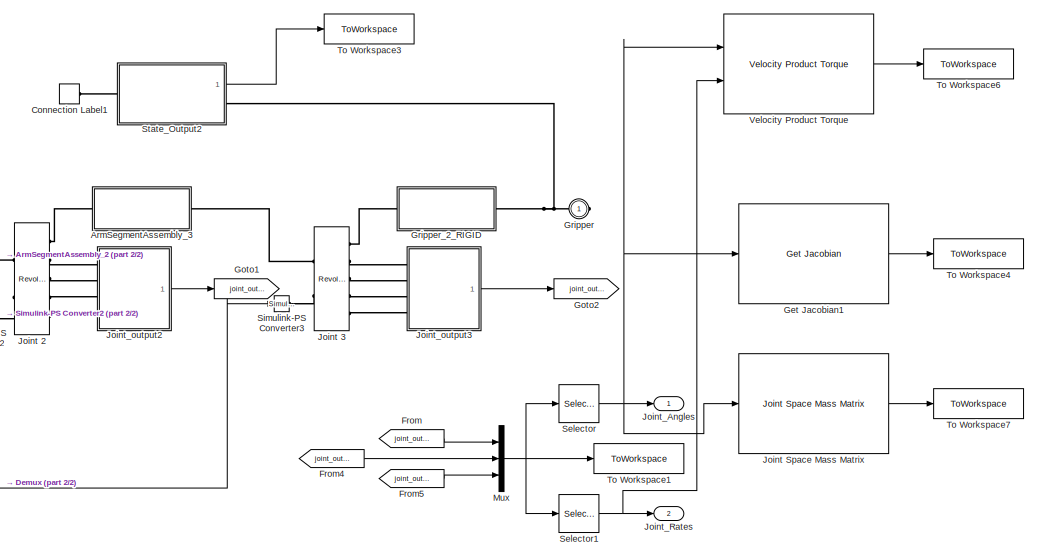
[diagram: root canvas - part 1/2, right side, full height]
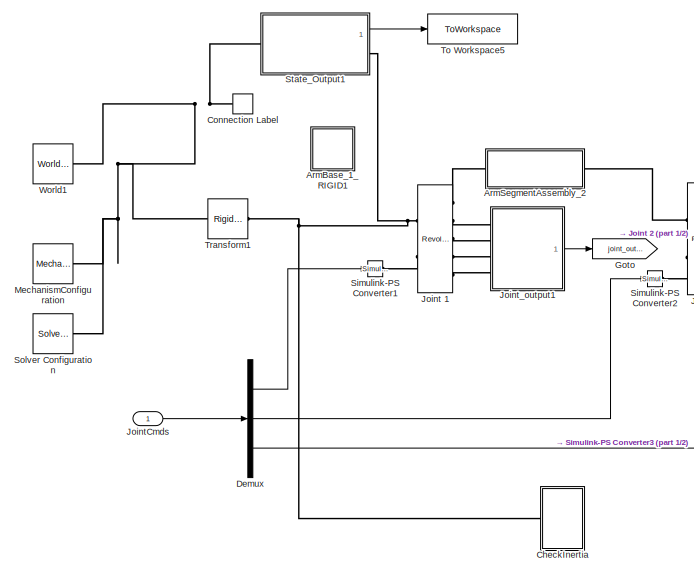
[diagram: root canvas - part 2/2, left side, full height]
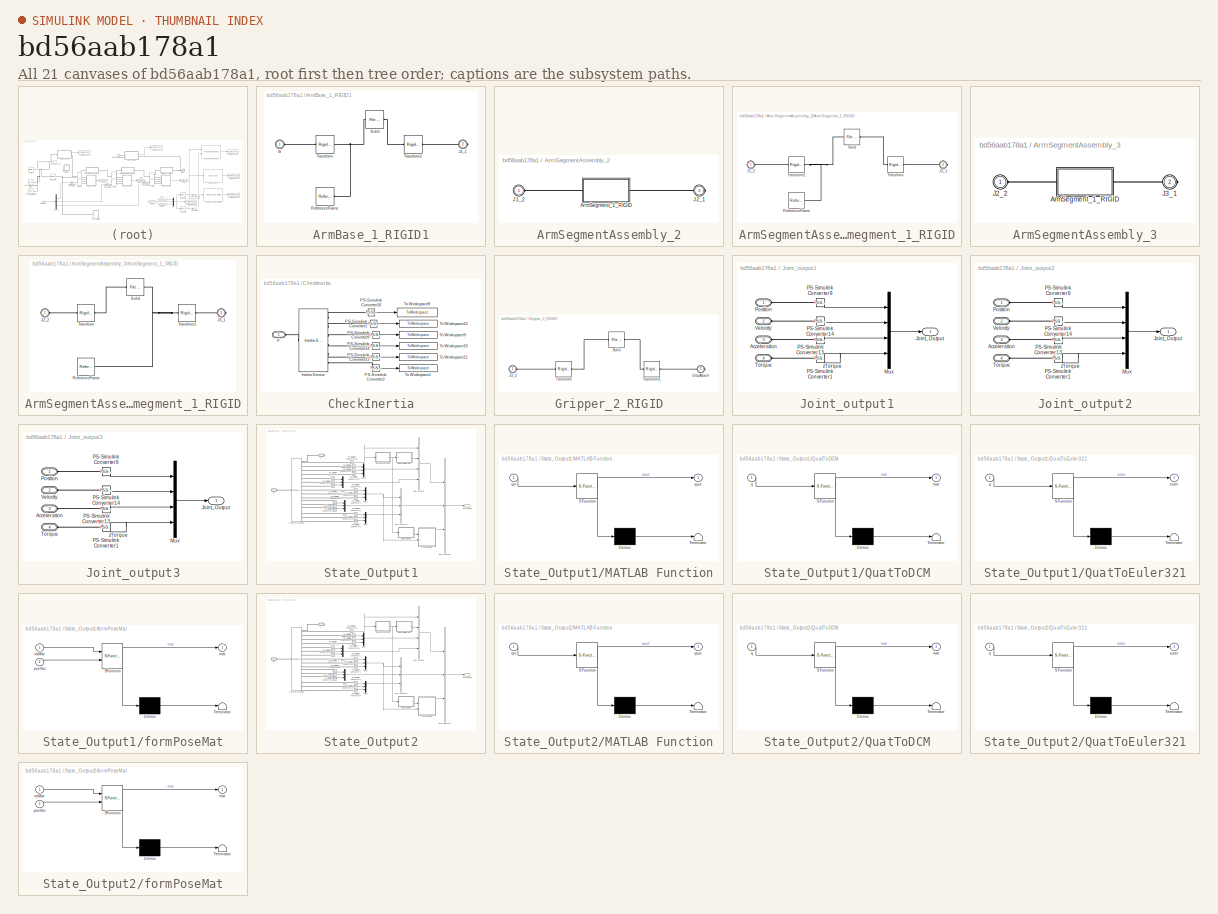
[diagram: thumbnail index - all 21 canvases of the model, root first then tree order]
MODEL slx_bd56aab178a1
KIND model
CONFIG AbsTol = auto
CONFIG EnableMultiTasking = off
CONFIG FixedStep = auto
CONFIG MaxStep = auto
CONFIG MinStep = auto
CONFIG RelTol = 1e-3
CONFIG SampleTimeConstraint = Unconstrained
CONFIG SolverName = VariableStepAuto
CONFIG StartTime = 0.0
CONFIG StopTime = 10.0
BLOCK [SubSystem] ArmBase_1_RIGID1
  Commented = on
  Ports = [0, 0, 0, 0, 0, 1, 1]
  RequestExecContextInheritance = off
BLOCK [PMIOPort] ArmBase_1_RIGID1/B
  Side = Left
BLOCK [PMIOPort] ArmBase_1_RIGID1/J1_1
  Port = 2
  Side = Right
BLOCK [Reference] ArmBase_1_RIGID1/ReferenceFrame  REF=sm_lib/Frames and
Transforms/Reference
Frame
  Ports = [0, 0, 0, 0, 0, 0, 1]
  SourceBlock = sm_lib/Frames and\nTransforms/Reference\nFrame
  SourceProductBaseCode = MS
  SourceType = Reference\nFrame
BLOCK [Reference] ArmBase_1_RIGID1/Solid  REF=sm_lib/Body Elements/File Solid
  Ports = [0, 0, 0, 0, 0, 1, 1]
  SourceBlock = sm_lib/Body Elements/File Solid
  SourceProductBaseCode = MS
  SourceType = File Solid
BLOCK [Reference] ArmBase_1_RIGID1/Transform  REF=sm_lib/Frames and
Transforms/Rigid
Transform
  Ports = [0, 0, 0, 0, 0, 1, 1]
  SourceBlock = sm_lib/Frames and\nTransforms/Rigid\nTransform
  SourceProductBaseCode = MS
  SourceType = Rigid\nTransform
BLOCK [Reference] ArmBase_1_RIGID1/Transform1  REF=sm_lib/Frames and
Transforms/Rigid
Transform
  Ports = [0, 0, 0, 0, 0, 1, 1]
  SourceBlock = sm_lib/Frames and\nTransforms/Rigid\nTransform
  SourceProductBaseCode = MS
  SourceType = Rigid\nTransform
BLOCK [SubSystem] ArmSegmentAssembly_2
  Ports = [0, 0, 0, 0, 0, 1, 1]
  RequestExecContextInheritance = off
BLOCK [SubSystem] ArmSegmentAssembly_2/ArmSegment_1_RIGID
  Ports = [0, 0, 0, 0, 0, 1, 1]
  RequestExecContextInheritance = off
BLOCK [PMIOPort] ArmSegmentAssembly_2/ArmSegment_1_RIGID/J1_2
  Side = Left
BLOCK [PMIOPort] ArmSegmentAssembly_2/ArmSegment_1_RIGID/J2_1
  Port = 2
  Side = Right
BLOCK [Reference] ArmSegmentAssembly_2/ArmSegment_1_RIGID/ReferenceFrame  REF=sm_lib/Frames and
Transforms/Reference
Frame
  Ports = [0, 0, 0, 0, 0, 0, 1]
  SourceBlock = sm_lib/Frames and\nTransforms/Reference\nFrame
  SourceProductBaseCode = MS
  SourceType = Reference\nFrame
BLOCK [Reference] ArmSegmentAssembly_2/ArmSegment_1_RIGID/Solid  REF=sm_lib/Body Elements/File Solid
  Ports = [0, 0, 0, 0, 0, 1, 1]
  SourceBlock = sm_lib/Body Elements/File Solid
  SourceProductBaseCode = MS
  SourceType = File Solid
BLOCK [Reference] ArmSegmentAssembly_2/ArmSegment_1_RIGID/Transform  REF=sm_lib/Frames and
Transforms/Rigid
Transform
  Ports = [0, 0, 0, 0, 0, 1, 1]
  SourceBlock = sm_lib/Frames and\nTransforms/Rigid\nTransform
  SourceProductBaseCode = MS
  SourceType = Rigid\nTransform
BLOCK [Reference] ArmSegmentAssembly_2/ArmSegment_1_RIGID/Transform1  REF=sm_lib/Frames and
Transforms/Rigid
Transform
  Ports = [0, 0, 0, 0, 0, 1, 1]
  SourceBlock = sm_lib/Frames and\nTransforms/Rigid\nTransform
  SourceProductBaseCode = MS
  SourceType = Rigid\nTransform
BLOCK [PMIOPort] ArmSegmentAssembly_2/J1_2
  Side = Left
BLOCK [PMIOPort] ArmSegmentAssembly_2/J2_1
  Port = 2
  Side = Right
BLOCK [SubSystem] ArmSegmentAssembly_3
  Ports = [0, 0, 0, 0, 0, 1, 1]
  RequestExecContextInheritance = off
BLOCK [SubSystem] ArmSegmentAssembly_3/ArmSegment_1_RIGID
  Ports = [0, 0, 0, 0, 0, 1, 1]
  RequestExecContextInheritance = off
BLOCK [PMIOPort] ArmSegmentAssembly_3/ArmSegment_1_RIGID/J2_2
  Side = Left
BLOCK [PMIOPort] ArmSegmentAssembly_3/ArmSegment_1_RIGID/J3_1
  Port = 2
  Side = Right
BLOCK [Reference] ArmSegmentAssembly_3/ArmSegment_1_RIGID/ReferenceFrame  REF=sm_lib/Frames and
Transforms/Reference
Frame
  Ports = [0, 0, 0, 0, 0, 0, 1]
  SourceBlock = sm_lib/Frames and\nTransforms/Reference\nFrame
  SourceProductBaseCode = MS
  SourceType = Reference\nFrame
BLOCK [Reference] ArmSegmentAssembly_3/ArmSegment_1_RIGID/Solid  REF=sm_lib/Body Elements/File Solid
  Ports = [0, 0, 0, 0, 0, 1, 1]
  SourceBlock = sm_lib/Body Elements/File Solid
  SourceProductBaseCode = MS
  SourceType = File Solid
BLOCK [Reference] ArmSegmentAssembly_3/ArmSegment_1_RIGID/Transform  REF=sm_lib/Frames and
Transforms/Rigid
Transform
  Ports = [0, 0, 0, 0, 0, 1, 1]
  SourceBlock = sm_lib/Frames and\nTransforms/Rigid\nTransform
  SourceProductBaseCode = MS
  SourceType = Rigid\nTransform
BLOCK [Reference] ArmSegmentAssembly_3/ArmSegment_1_RIGID/Transform1  REF=sm_lib/Frames and
Transforms/Rigid
Transform
  Ports = [0, 0, 0, 0, 0, 1, 1]
  SourceBlock = sm_lib/Frames and\nTransforms/Rigid\nTransform
  SourceProductBaseCode = MS
  SourceType = Rigid\nTransform
BLOCK [PMIOPort] ArmSegmentAssembly_3/J2_2
  Side = Left
BLOCK [PMIOPort] ArmSegmentAssembly_3/J3_1
  Port = 2
  Side = Right
BLOCK [SubSystem] CheckInertia
  Commented = on
  Ports = [0, 0, 0, 0, 0, 1]
  RequestExecContextInheritance = off
BLOCK [PMIOPort] CheckInertia/F
  Side = Left
BLOCK [Reference] CheckInertia/Inertia Sensor  REF=sm_lib/Body Elements/Inertia Sensor
  Ports = [0, 0, 0, 0, 0, 1, 6]
  SourceBlock = sm_lib/Body Elements/Inertia Sensor
  SourceProductBaseCode = MS
  SourceType = Inertia Sensor
BLOCK [Reference] CheckInertia/PS-Simulink Converter1  REF=nesl_utility/PS-Simulink
Converter
  Ports = [0, 1, 0, 0, 0, 1]
  SourceBlock = nesl_utility/PS-Simulink\nConverter
  SourceProductBaseCode = SS,PW,VE
  SourceType = PS-Simulink\nConverter
BLOCK [Reference] CheckInertia/PS-Simulink Converter13  REF=nesl_utility/PS-Simulink
Converter
  Ports = [0, 1, 0, 0, 0, 1]
  SourceBlock = nesl_utility/PS-Simulink\nConverter
  SourceProductBaseCode = SS,PW,VE
  SourceType = PS-Simulink\nConverter
BLOCK [Reference] CheckInertia/PS-Simulink Converter14  REF=nesl_utility/PS-Simulink
Converter
  Ports = [0, 1, 0, 0, 0, 1]
  SourceBlock = nesl_utility/PS-Simulink\nConverter
  SourceProductBaseCode = SS,PW,VE
  SourceType = PS-Simulink\nConverter
BLOCK [Reference] CheckInertia/PS-Simulink Converter16  REF=nesl_utility/PS-Simulink
Converter
  Ports = [0, 1, 0, 0, 0, 1]
  SourceBlock = nesl_utility/PS-Simulink\nConverter
  SourceProductBaseCode = SS,PW,VE
  SourceType = PS-Simulink\nConverter
BLOCK [Reference] CheckInertia/PS-Simulink Converter2  REF=nesl_utility/PS-Simulink
Converter
  Ports = [0, 1, 0, 0, 0, 1]
  SourceBlock = nesl_utility/PS-Simulink\nConverter
  SourceProductBaseCode = SS,PW,VE
  SourceType = PS-Simulink\nConverter
BLOCK [Reference] CheckInertia/PS-Simulink Converter9  REF=nesl_utility/PS-Simulink
Converter
  Ports = [0, 1, 0, 0, 0, 1]
  SourceBlock = nesl_utility/PS-Simulink\nConverter
  SourceProductBaseCode = SS,PW,VE
  SourceType = PS-Simulink\nConverter
BLOCK [ToWorkspace] CheckInertia/To Workspace1
  FixptAsFi = on
  MaxDataPoints = inf
  Ports = [1]
  SampleTime = -1
  SaveFormat = Timeseries
  VariableName = rot
BLOCK [ToWorkspace] CheckInertia/To Workspace10
  FixptAsFi = on
  MaxDataPoints = inf
  Ports = [1]
  SampleTime = -1
  SaveFormat = Timeseries
  VariableName = i2
BLOCK [ToWorkspace] CheckInertia/To Workspace11
  FixptAsFi = on
  MaxDataPoints = inf
  Ports = [1]
  SampleTime = -1
  SaveFormat = Timeseries
  VariableName = i3
BLOCK [ToWorkspace] CheckInertia/To Workspace12
  FixptAsFi = on
  MaxDataPoints = inf
  Ports = [1]
  SampleTime = -1
  SaveFormat = Timeseries
  VariableName = cg
BLOCK [ToWorkspace] CheckInertia/To Workspace8
  FixptAsFi = on
  MaxDataPoints = inf
  Ports = [1]
  SampleTime = -1
  SaveFormat = Timeseries
  VariableName = mass
BLOCK [ToWorkspace] CheckInertia/To Workspace9
  FixptAsFi = on
  MaxDataPoints = inf
  Ports = [1]
  SampleTime = -1
  SaveFormat = Timeseries
  VariableName = i1
BLOCK [ConnectionLabel] Connection Label
  Label = World
  Ports = [0, 0, 0, 0, 0, 1]
BLOCK [ConnectionLabel] Connection Label1
  Label = World
  Ports = [0, 0, 0, 0, 0, 1]
BLOCK [Demux] Demux
  Outputs = 3
  Ports = [1, 3]
BLOCK [From] From
  GotoTag = joint_out_1
BLOCK [From] From4
  GotoTag = joint_out_2
BLOCK [From] From5
  GotoTag = joint_out_3
BLOCK [Reference] Get Jacobian1  REF=robotmaniplib/Get Jacobian
  Ports = [1, 1]
  SourceBlock = robotmaniplib/Get Jacobian
  SourceProductBaseCode = RO
  SourceType = Get Jacobian
BLOCK [Goto] Goto
  GotoTag = joint_out_1
BLOCK [Goto] Goto1
  GotoTag = joint_out_2
BLOCK [Goto] Goto2
  GotoTag = joint_out_3
BLOCK [PMIOPort] Gripper
  Side = Right
BLOCK [SubSystem] Gripper_2_RIGID
  Ports = [0, 0, 0, 0, 0, 1, 1]
  RequestExecContextInheritance = off
BLOCK [PMIOPort] Gripper_2_RIGID/GripAttach
  Port = 2
  Side = Right
BLOCK [PMIOPort] Gripper_2_RIGID/J3_2
  Side = Left
BLOCK [Reference] Gripper_2_RIGID/Solid  REF=sm_lib/Body Elements/File Solid
  Ports = [0, 0, 0, 0, 0, 1, 1]
  SourceBlock = sm_lib/Body Elements/File Solid
  SourceProductBaseCode = MS
  SourceType = File Solid
BLOCK [Reference] Gripper_2_RIGID/Transform  REF=sm_lib/Frames and
Transforms/Rigid
Transform
  Ports = [0, 0, 0, 0, 0, 1, 1]
  SourceBlock = sm_lib/Frames and\nTransforms/Rigid\nTransform
  SourceProductBaseCode = MS
  SourceType = Rigid\nTransform
BLOCK [Reference] Gripper_2_RIGID/Transform1  REF=sm_lib/Frames and
Transforms/Rigid
Transform
  Ports = [0, 0, 0, 0, 0, 1, 1]
  SourceBlock = sm_lib/Frames and\nTransforms/Rigid\nTransform
  SourceProductBaseCode = MS
  SourceType = Rigid\nTransform
BLOCK [Reference] Joint 1  REF=sm_lib/Joints/Revolute Joint
  Ports = [0, 0, 0, 0, 0, 2, 5]
  SourceBlock = sm_lib/Joints/Revolute Joint
  SourceProductBaseCode = MS
  SourceType = Revolute Joint
BLOCK [Reference] Joint 2  REF=sm_lib/Joints/Revolute Joint
  Ports = [0, 0, 0, 0, 0, 2, 5]
  SourceBlock = sm_lib/Joints/Revolute Joint
  SourceProductBaseCode = MS
  SourceType = Revolute Joint
BLOCK [Reference] Joint 3  REF=sm_lib/Joints/Revolute Joint
  Ports = [0, 0, 0, 0, 0, 2, 5]
  SourceBlock = sm_lib/Joints/Revolute Joint
  SourceProductBaseCode = MS
  SourceType = Revolute Joint
BLOCK [Reference] Joint Space Mass Matrix  REF=robotmaniplib/Joint Space Mass Matrix
  Ports = [1, 1]
  SourceBlock = robotmaniplib/Joint Space Mass Matrix
  SourceProductBaseCode = RO
  SourceType = Joint Space Mass Matrix
BLOCK [Inport] JointCmds
BLOCK [Outport] Joint_Angles
BLOCK [Outport] Joint_Rates
  Port = 2
BLOCK [SubSystem] Joint_output1
  Ports = [0, 1, 0, 0, 0, 4]
  RequestExecContextInheritance = off
BLOCK [PMIOPort] Joint_output1/Acceleration
  Port = 3
  Side = Left
BLOCK [Outport] Joint_output1/Joint_Output
BLOCK [Mux] Joint_output1/Mux
  DisplayOption = bar
  Ports = [4, 1]
BLOCK [Reference] Joint_output1/PS-Simulink Converter1  REF=nesl_utility/PS-Simulink
Converter
  Ports = [0, 1, 0, 0, 0, 1]
  SourceBlock = nesl_utility/PS-Simulink\nConverter
  SourceProductBaseCode = SS,PW,VE
  SourceType = PS-Simulink\nConverter
BLOCK [Reference] Joint_output1/PS-Simulink Converter13  REF=nesl_utility/PS-Simulink
Converter
  Ports = [0, 1, 0, 0, 0, 1]
  SourceBlock = nesl_utility/PS-Simulink\nConverter
  SourceProductBaseCode = SS,PW,VE
  SourceType = PS-Simulink\nConverter
BLOCK [Reference] Joint_output1/PS-Simulink Converter14  REF=nesl_utility/PS-Simulink
Converter
  Ports = [0, 1, 0, 0, 0, 1]
  SourceBlock = nesl_utility/PS-Simulink\nConverter
  SourceProductBaseCode = SS,PW,VE
  SourceType = PS-Simulink\nConverter
BLOCK [Reference] Joint_output1/PS-Simulink Converter9  REF=nesl_utility/PS-Simulink
Converter
  Ports = [0, 1, 0, 0, 0, 1]
  SourceBlock = nesl_utility/PS-Simulink\nConverter
  SourceProductBaseCode = SS,PW,VE
  SourceType = PS-Simulink\nConverter
BLOCK [PMIOPort] Joint_output1/Position
  Side = Left
BLOCK [PMIOPort] Joint_output1/Torque
  Port = 4
  Side = Left
BLOCK [PMIOPort] Joint_output1/Velocity
  Port = 2
  Side = Left
BLOCK [Selector] Joint_output1/zTorque
  IndexOptions = Index vector (dialog)
  Indices = 3
  InputPortWidth = 3
  OutputSizes = 1
  Ports = [1, 1]
BLOCK [SubSystem] Joint_output2
  Ports = [0, 1, 0, 0, 0, 4]
  RequestExecContextInheritance = off
BLOCK [PMIOPort] Joint_output2/Acceleration
  Port = 3
  Side = Left
BLOCK [Outport] Joint_output2/Joint_Output
BLOCK [Mux] Joint_output2/Mux
  DisplayOption = bar
  Ports = [4, 1]
BLOCK [Reference] Joint_output2/PS-Simulink Converter1  REF=nesl_utility/PS-Simulink
Converter
  Ports = [0, 1, 0, 0, 0, 1]
  SourceBlock = nesl_utility/PS-Simulink\nConverter
  SourceProductBaseCode = SS,PW,VE
  SourceType = PS-Simulink\nConverter
BLOCK [Reference] Joint_output2/PS-Simulink Converter13  REF=nesl_utility/PS-Simulink
Converter
  Ports = [0, 1, 0, 0, 0, 1]
  SourceBlock = nesl_utility/PS-Simulink\nConverter
  SourceProductBaseCode = SS,PW,VE
  SourceType = PS-Simulink\nConverter
BLOCK [Reference] Joint_output2/PS-Simulink Converter14  REF=nesl_utility/PS-Simulink
Converter
  Ports = [0, 1, 0, 0, 0, 1]
  SourceBlock = nesl_utility/PS-Simulink\nConverter
  SourceProductBaseCode = SS,PW,VE
  SourceType = PS-Simulink\nConverter
BLOCK [Reference] Joint_output2/PS-Simulink Converter9  REF=nesl_utility/PS-Simulink
Converter
  Ports = [0, 1, 0, 0, 0, 1]
  SourceBlock = nesl_utility/PS-Simulink\nConverter
  SourceProductBaseCode = SS,PW,VE
  SourceType = PS-Simulink\nConverter
BLOCK [PMIOPort] Joint_output2/Position
  Side = Left
BLOCK [PMIOPort] Joint_output2/Torque
  Port = 4
  Side = Left
BLOCK [PMIOPort] Joint_output2/Velocity
  Port = 2
  Side = Left
BLOCK [Selector] Joint_output2/zTorque
  IndexOptions = Index vector (dialog)
  Indices = 3
  InputPortWidth = 3
  OutputSizes = 1
  Ports = [1, 1]
BLOCK [SubSystem] Joint_output3
  Ports = [0, 1, 0, 0, 0, 4]
  RequestExecContextInheritance = off
BLOCK [PMIOPort] Joint_output3/Acceleration
  Port = 3
  Side = Left
BLOCK [Outport] Joint_output3/Joint_Output
BLOCK [Mux] Joint_output3/Mux
  DisplayOption = bar
  Ports = [4, 1]
BLOCK [Reference] Joint_output3/PS-Simulink Converter1  REF=nesl_utility/PS-Simulink
Converter
  Ports = [0, 1, 0, 0, 0, 1]
  SourceBlock = nesl_utility/PS-Simulink\nConverter
  SourceProductBaseCode = SS,PW,VE
  SourceType = PS-Simulink\nConverter
BLOCK [Reference] Joint_output3/PS-Simulink Converter13  REF=nesl_utility/PS-Simulink
Converter
  Ports = [0, 1, 0, 0, 0, 1]
  SourceBlock = nesl_utility/PS-Simulink\nConverter
  SourceProductBaseCode = SS,PW,VE
  SourceType = PS-Simulink\nConverter
BLOCK [Reference] Joint_output3/PS-Simulink Converter14  REF=nesl_utility/PS-Simulink
Converter
  Ports = [0, 1, 0, 0, 0, 1]
  SourceBlock = nesl_utility/PS-Simulink\nConverter
  SourceProductBaseCode = SS,PW,VE
  SourceType = PS-Simulink\nConverter
BLOCK [Reference] Joint_output3/PS-Simulink Converter9  REF=nesl_utility/PS-Simulink
Converter
  Ports = [0, 1, 0, 0, 0, 1]
  SourceBlock = nesl_utility/PS-Simulink\nConverter
  SourceProductBaseCode = SS,PW,VE
  SourceType = PS-Simulink\nConverter
BLOCK [PMIOPort] Joint_output3/Position
  Side = Left
BLOCK [PMIOPort] Joint_output3/Torque
  Port = 4
  Side = Left
BLOCK [PMIOPort] Joint_output3/Velocity
  Port = 2
  Side = Left
BLOCK [Selector] Joint_output3/zTorque
  IndexOptions = Index vector (dialog)
  Indices = 3
  InputPortWidth = 3
  OutputSizes = 1
  Ports = [1, 1]
BLOCK [Reference] MechanismConfiguration  REF=sm_lib/Utilities/Mechanism
Configuration
  Ports = [0, 0, 0, 0, 0, 0, 1]
  SourceBlock = sm_lib/Utilities/Mechanism\nConfiguration
  SourceProductBaseCode = MS
  SourceType = Mechanism\nConfiguration
BLOCK [Mux] Mux
  DisplayOption = bar
  Inputs = 3
  Ports = [3, 1]
BLOCK [Selector] Selector
  IndexOptions = Index vector (dialog)
  Indices = [1 5 9]
  InputPortWidth = 12
  OutputSizes = 1
  Ports = [1, 1]
BLOCK [Selector] Selector1
  IndexOptions = Index vector (dialog)
  Indices = [2 6 10]
  InputPortWidth = 12
  OutputSizes = 1
  Ports = [1, 1]
BLOCK [Reference] Simulink-PS Converter1  REF=nesl_utility/Simulink-PS
Converter
  Ports = [1, 0, 0, 0, 0, 0, 1]
  SourceBlock = nesl_utility/Simulink-PS\nConverter
  SourceProductBaseCode = SS,PW,VE
  SourceType = Simulink-PS\nConverter
BLOCK [Reference] Simulink-PS Converter2  REF=nesl_utility/Simulink-PS
Converter
  Ports = [1, 0, 0, 0, 0, 0, 1]
  SourceBlock = nesl_utility/Simulink-PS\nConverter
  SourceProductBaseCode = SS,PW,VE
  SourceType = Simulink-PS\nConverter
BLOCK [Reference] Simulink-PS Converter3  REF=nesl_utility/Simulink-PS
Converter
  Ports = [1, 0, 0, 0, 0, 0, 1]
  SourceBlock = nesl_utility/Simulink-PS\nConverter
  SourceProductBaseCode = SS,PW,VE
  SourceType = Simulink-PS\nConverter
BLOCK [Reference] Solver Configuration  REF=nesl_utility/Solver
Configuration
  Ports = [0, 0, 0, 0, 0, 0, 1]
  SourceBlock = nesl_utility/Solver\nConfiguration
  SourceProductBaseCode = SS,PW,VE
  SourceType = Solver\nConfiguration
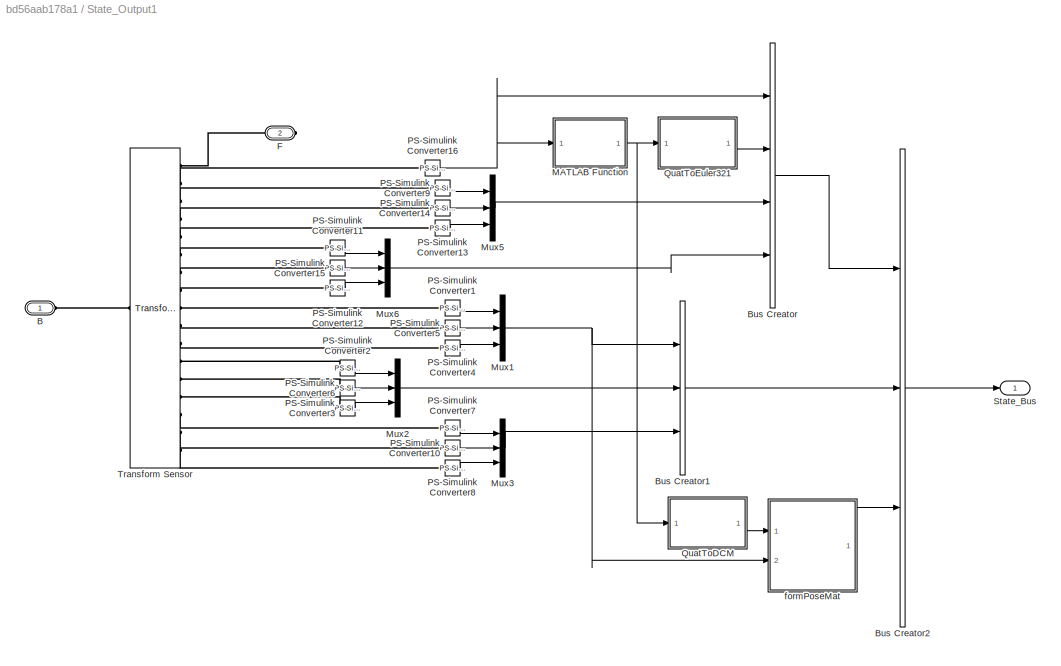
BLOCK [SubSystem] State_Output1
  Ports = [0, 1, 0, 0, 0, 1, 1]
  RequestExecContextInheritance = off
BLOCK [PMIOPort] State_Output1/B
  Side = Left
BLOCK [BusCreator] State_Output1/Bus Creator
  DisplayOption = bar
  InheritFromInputs = off
  Inputs = 4
  OutDataTypeStr = Bus: RotStateBus
  Ports = [4, 1]
BLOCK [BusCreator] State_Output1/Bus Creator1
  DisplayOption = bar
  InheritFromInputs = off
  Inputs = 3
  OutDataTypeStr = Bus: TransStateBus
  Ports = [3, 1]
BLOCK [BusCreator] State_Output1/Bus Creator2
  DisplayOption = bar
  InheritFromInputs = off
  Inputs = 3
  OutDataTypeStr = Bus: StateBus
  Ports = [3, 1]
BLOCK [PMIOPort] State_Output1/F
  Port = 2
  Side = Right
BLOCK [SubSystem] State_Output1/MATLAB Function
  ErrorFcn = Stateflow.Translate.translate
  PermitHierarchicalResolution = ExplicitOnly
  Ports = [1, 1]
  RequestExecContextInheritance = off
  SFBlockType = MATLAB Function
  TreatAsAtomicUnit = on
BLOCK [Demux] State_Output1/MATLAB Function/ Demux 
  Outputs = 1
  Ports = [1, 1]
BLOCK [S-Function] State_Output1/MATLAB Function/ SFunction 
  EnableBusSupport = on
  FunctionName = sf_sfun
  PortCounts = [1 2]
  Ports = [1, 2]
  SFcnIsStateOwnerBlock = off
  SFunctionDeploymentMode = off
  Tag = Stateflow S-Function 19
BLOCK [Terminator] State_Output1/MATLAB Function/ Terminator 
BLOCK [Inport] State_Output1/MATLAB Function/qin
BLOCK [Outport] State_Output1/MATLAB Function/qout
BLOCK [Mux] State_Output1/Mux1
  DisplayOption = bar
  Inputs = 3
  Ports = [3, 1]
BLOCK [Mux] State_Output1/Mux2
  DisplayOption = bar
  Inputs = 3
  Ports = [3, 1]
BLOCK [Mux] State_Output1/Mux3
  DisplayOption = bar
  Inputs = 3
  Ports = [3, 1]
BLOCK [Mux] State_Output1/Mux5
  DisplayOption = bar
  Inputs = 3
  Ports = [3, 1]
BLOCK [Mux] State_Output1/Mux6
  DisplayOption = bar
  Inputs = 3
  Ports = [3, 1]
BLOCK [Reference] State_Output1/PS-Simulink Converter1  REF=nesl_utility/PS-Simulink
Converter
  Ports = [0, 1, 0, 0, 0, 1]
  SourceBlock = nesl_utility/PS-Simulink\nConverter
  SourceProductBaseCode = SS,PW,VE
  SourceType = PS-Simulink\nConverter
BLOCK [Reference] State_Output1/PS-Simulink Converter10  REF=nesl_utility/PS-Simulink
Converter
  Ports = [0, 1, 0, 0, 0, 1]
  SourceBlock = nesl_utility/PS-Simulink\nConverter
  SourceProductBaseCode = SS,PW,VE
  SourceType = PS-Simulink\nConverter
BLOCK [Reference] State_Output1/PS-Simulink Converter11  REF=nesl_utility/PS-Simulink
Converter
  Ports = [0, 1, 0, 0, 0, 1]
  SourceBlock = nesl_utility/PS-Simulink\nConverter
  SourceProductBaseCode = SS,PW,VE
  SourceType = PS-Simulink\nConverter
BLOCK [Reference] State_Output1/PS-Simulink Converter12  REF=nesl_utility/PS-Simulink
Converter
  Ports = [0, 1, 0, 0, 0, 1]
  SourceBlock = nesl_utility/PS-Simulink\nConverter
  SourceProductBaseCode = SS,PW,VE
  SourceType = PS-Simulink\nConverter
BLOCK [Reference] State_Output1/PS-Simulink Converter13  REF=nesl_utility/PS-Simulink
Converter
  Ports = [0, 1, 0, 0, 0, 1]
  SourceBlock = nesl_utility/PS-Simulink\nConverter
  SourceProductBaseCode = SS,PW,VE
  SourceType = PS-Simulink\nConverter
BLOCK [Reference] State_Output1/PS-Simulink Converter14  REF=nesl_utility/PS-Simulink
Converter
  Ports = [0, 1, 0, 0, 0, 1]
  SourceBlock = nesl_utility/PS-Simulink\nConverter
  SourceProductBaseCode = SS,PW,VE
  SourceType = PS-Simulink\nConverter
BLOCK [Reference] State_Output1/PS-Simulink Converter15  REF=nesl_utility/PS-Simulink
Converter
  Ports = [0, 1, 0, 0, 0, 1]
  SourceBlock = nesl_utility/PS-Simulink\nConverter
  SourceProductBaseCode = SS,PW,VE
  SourceType = PS-Simulink\nConverter
BLOCK [Reference] State_Output1/PS-Simulink Converter16  REF=nesl_utility/PS-Simulink
Converter
  Ports = [0, 1, 0, 0, 0, 1]
  SourceBlock = nesl_utility/PS-Simulink\nConverter
  SourceProductBaseCode = SS,PW,VE
  SourceType = PS-Simulink\nConverter
BLOCK [Reference] State_Output1/PS-Simulink Converter2  REF=nesl_utility/PS-Simulink
Converter
  Ports = [0, 1, 0, 0, 0, 1]
  SourceBlock = nesl_utility/PS-Simulink\nConverter
  SourceProductBaseCode = SS,PW,VE
  SourceType = PS-Simulink\nConverter
BLOCK [Reference] State_Output1/PS-Simulink Converter3  REF=nesl_utility/PS-Simulink
Converter
  Ports = [0, 1, 0, 0, 0, 1]
  SourceBlock = nesl_utility/PS-Simulink\nConverter
  SourceProductBaseCode = SS,PW,VE
  SourceType = PS-Simulink\nConverter
BLOCK [Reference] State_Output1/PS-Simulink Converter4  REF=nesl_utility/PS-Simulink
Converter
  Ports = [0, 1, 0, 0, 0, 1]
  SourceBlock = nesl_utility/PS-Simulink\nConverter
  SourceProductBaseCode = SS,PW,VE
  SourceType = PS-Simulink\nConverter
BLOCK [Reference] State_Output1/PS-Simulink Converter5  REF=nesl_utility/PS-Simulink
Converter
  Ports = [0, 1, 0, 0, 0, 1]
  SourceBlock = nesl_utility/PS-Simulink\nConverter
  SourceProductBaseCode = SS,PW,VE
  SourceType = PS-Simulink\nConverter
BLOCK [Reference] State_Output1/PS-Simulink Converter6  REF=nesl_utility/PS-Simulink
Converter
  Ports = [0, 1, 0, 0, 0, 1]
  SourceBlock = nesl_utility/PS-Simulink\nConverter
  SourceProductBaseCode = SS,PW,VE
  SourceType = PS-Simulink\nConverter
BLOCK [Reference] State_Output1/PS-Simulink Converter7  REF=nesl_utility/PS-Simulink
Converter
  Ports = [0, 1, 0, 0, 0, 1]
  SourceBlock = nesl_utility/PS-Simulink\nConverter
  SourceProductBaseCode = SS,PW,VE
  SourceType = PS-Simulink\nConverter
BLOCK [Reference] State_Output1/PS-Simulink Converter8  REF=nesl_utility/PS-Simulink
Converter
  Ports = [0, 1, 0, 0, 0, 1]
  SourceBlock = nesl_utility/PS-Simulink\nConverter
  SourceProductBaseCode = SS,PW,VE
  SourceType = PS-Simulink\nConverter
BLOCK [Reference] State_Output1/PS-Simulink Converter9  REF=nesl_utility/PS-Simulink
Converter
  Ports = [0, 1, 0, 0, 0, 1]
  SourceBlock = nesl_utility/PS-Simulink\nConverter
  SourceProductBaseCode = SS,PW,VE
  SourceType = PS-Simulink\nConverter
BLOCK [SubSystem] State_Output1/QuatToDCM
  ErrorFcn = Stateflow.Translate.translate
  PermitHierarchicalResolution = ExplicitOnly
  Ports = [1, 1]
  RequestExecContextInheritance = off
  SFBlockType = MATLAB Function
  TreatAsAtomicUnit = on
BLOCK [Demux] State_Output1/QuatToDCM/ Demux 
  Outputs = 1
  Ports = [1, 1]
BLOCK [S-Function] State_Output1/QuatToDCM/ SFunction 
  EnableBusSupport = on
  FunctionName = sf_sfun
  PortCounts = [1 2]
  Ports = [1, 2]
  SFcnIsStateOwnerBlock = off
  SFunctionDeploymentMode = off
  Tag = Stateflow S-Function 20
BLOCK [Terminator] State_Output1/QuatToDCM/ Terminator 
BLOCK [Outport] State_Output1/QuatToDCM/mat
BLOCK [Inport] State_Output1/QuatToDCM/q
BLOCK [SubSystem] State_Output1/QuatToEuler321
  ErrorFcn = Stateflow.Translate.translate
  PermitHierarchicalResolution = ExplicitOnly
  Ports = [1, 1]
  RequestExecContextInheritance = off
  SFBlockType = MATLAB Function
  TreatAsAtomicUnit = on
BLOCK [Demux] State_Output1/QuatToEuler321/ Demux 
  Outputs = 1
  Ports = [1, 1]
BLOCK [S-Function] State_Output1/QuatToEuler321/ SFunction 
  EnableBusSupport = on
  FunctionName = sf_sfun
  PortCounts = [1 2]
  Ports = [1, 2]
  SFcnIsStateOwnerBlock = off
  SFunctionDeploymentMode = off
  Tag = Stateflow S-Function 21
BLOCK [Terminator] State_Output1/QuatToEuler321/ Terminator 
BLOCK [Outport] State_Output1/QuatToEuler321/euler
BLOCK [Inport] State_Output1/QuatToEuler321/q
BLOCK [Outport] State_Output1/State_Bus
BLOCK [Reference] State_Output1/Transform Sensor  REF=sm_lib/Frames and
Transforms/Transform
Sensor
  Ports = [0, 0, 0, 0, 0, 1, 17]
  SourceBlock = sm_lib/Frames and\nTransforms/Transform\nSensor
  SourceProductBaseCode = MS
  SourceType = Transform\nSensor
BLOCK [SubSystem] State_Output1/formPoseMat
  ErrorFcn = Stateflow.Translate.translate
  PermitHierarchicalResolution = ExplicitOnly
  Ports = [2, 1]
  RequestExecContextInheritance = off
  SFBlockType = MATLAB Function
  TreatAsAtomicUnit = on
BLOCK [Demux] State_Output1/formPoseMat/ Demux 
  Outputs = 1
  Ports = [1, 1]
BLOCK [S-Function] State_Output1/formPoseMat/ SFunction 
  EnableBusSupport = on
  FunctionName = sf_sfun
  PortCounts = [2 2]
  Ports = [2, 2]
  SFcnIsStateOwnerBlock = off
  SFunctionDeploymentMode = off
  Tag = Stateflow S-Function 22
BLOCK [Terminator] State_Output1/formPoseMat/ Terminator 
BLOCK [Outport] State_Output1/formPoseMat/mat
BLOCK [Inport] State_Output1/formPoseMat/posVec
  Port = 2
BLOCK [Inport] State_Output1/formPoseMat/rotMat
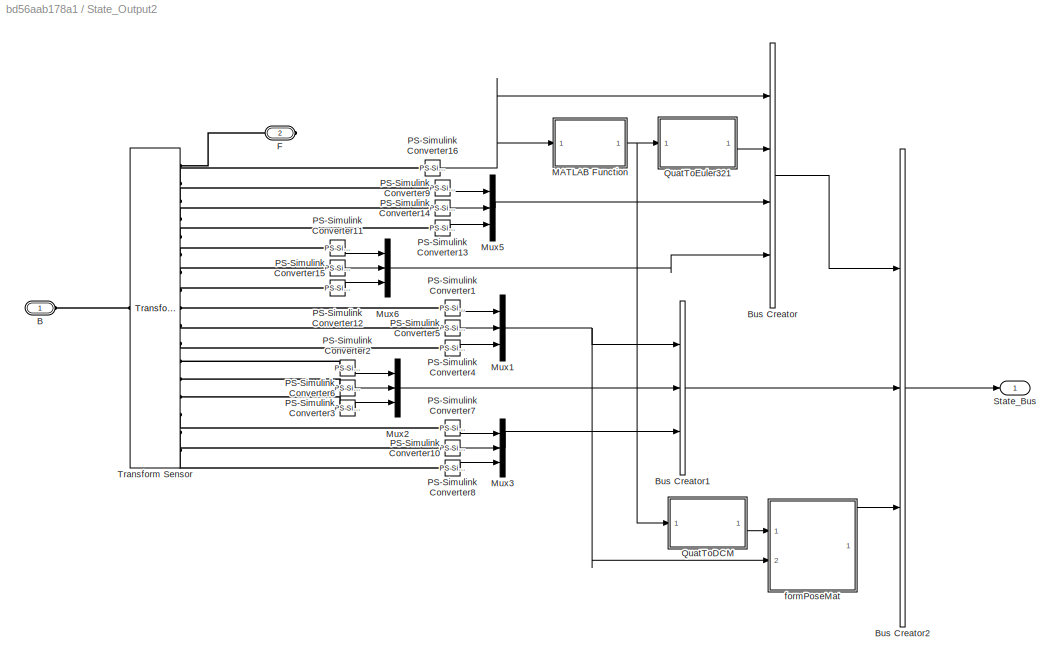
BLOCK [SubSystem] State_Output2
  Ports = [0, 1, 0, 0, 0, 1, 1]
  RequestExecContextInheritance = off
BLOCK [PMIOPort] State_Output2/B
  Side = Left
BLOCK [BusCreator] State_Output2/Bus Creator
  DisplayOption = bar
  InheritFromInputs = off
  Inputs = 4
  OutDataTypeStr = Bus: RotStateBus
  Ports = [4, 1]
BLOCK [BusCreator] State_Output2/Bus Creator1
  DisplayOption = bar
  InheritFromInputs = off
  Inputs = 3
  OutDataTypeStr = Bus: TransStateBus
  Ports = [3, 1]
BLOCK [BusCreator] State_Output2/Bus Creator2
  DisplayOption = bar
  InheritFromInputs = off
  Inputs = 3
  OutDataTypeStr = Bus: StateBus
  Ports = [3, 1]
BLOCK [PMIOPort] State_Output2/F
  Port = 2
  Side = Right
BLOCK [SubSystem] State_Output2/MATLAB Function
  ErrorFcn = Stateflow.Translate.translate
  PermitHierarchicalResolution = ExplicitOnly
  Ports = [1, 1]
  RequestExecContextInheritance = off
  SFBlockType = MATLAB Function
  TreatAsAtomicUnit = on
BLOCK [Demux] State_Output2/MATLAB Function/ Demux 
  Outputs = 1
  Ports = [1, 1]
BLOCK [S-Function] State_Output2/MATLAB Function/ SFunction 
  EnableBusSupport = on
  FunctionName = sf_sfun
  PortCounts = [1 2]
  Ports = [1, 2]
  SFcnIsStateOwnerBlock = off
  SFunctionDeploymentMode = off
  Tag = Stateflow S-Function 3
BLOCK [Terminator] State_Output2/MATLAB Function/ Terminator 
BLOCK [Inport] State_Output2/MATLAB Function/qin
BLOCK [Outport] State_Output2/MATLAB Function/qout
BLOCK [Mux] State_Output2/Mux1
  DisplayOption = bar
  Inputs = 3
  Ports = [3, 1]
BLOCK [Mux] State_Output2/Mux2
  DisplayOption = bar
  Inputs = 3
  Ports = [3, 1]
BLOCK [Mux] State_Output2/Mux3
  DisplayOption = bar
  Inputs = 3
  Ports = [3, 1]
BLOCK [Mux] State_Output2/Mux5
  DisplayOption = bar
  Inputs = 3
  Ports = [3, 1]
BLOCK [Mux] State_Output2/Mux6
  DisplayOption = bar
  Inputs = 3
  Ports = [3, 1]
BLOCK [Reference] State_Output2/PS-Simulink Converter1  REF=nesl_utility/PS-Simulink
Converter
  Ports = [0, 1, 0, 0, 0, 1]
  SourceBlock = nesl_utility/PS-Simulink\nConverter
  SourceProductBaseCode = SS,PW,VE
  SourceType = PS-Simulink\nConverter
BLOCK [Reference] State_Output2/PS-Simulink Converter10  REF=nesl_utility/PS-Simulink
Converter
  Ports = [0, 1, 0, 0, 0, 1]
  SourceBlock = nesl_utility/PS-Simulink\nConverter
  SourceProductBaseCode = SS,PW,VE
  SourceType = PS-Simulink\nConverter
BLOCK [Reference] State_Output2/PS-Simulink Converter11  REF=nesl_utility/PS-Simulink
Converter
  Ports = [0, 1, 0, 0, 0, 1]
  SourceBlock = nesl_utility/PS-Simulink\nConverter
  SourceProductBaseCode = SS,PW,VE
  SourceType = PS-Simulink\nConverter
BLOCK [Reference] State_Output2/PS-Simulink Converter12  REF=nesl_utility/PS-Simulink
Converter
  Ports = [0, 1, 0, 0, 0, 1]
  SourceBlock = nesl_utility/PS-Simulink\nConverter
  SourceProductBaseCode = SS,PW,VE
  SourceType = PS-Simulink\nConverter
BLOCK [Reference] State_Output2/PS-Simulink Converter13  REF=nesl_utility/PS-Simulink
Converter
  Ports = [0, 1, 0, 0, 0, 1]
  SourceBlock = nesl_utility/PS-Simulink\nConverter
  SourceProductBaseCode = SS,PW,VE
  SourceType = PS-Simulink\nConverter
BLOCK [Reference] State_Output2/PS-Simulink Converter14  REF=nesl_utility/PS-Simulink
Converter
  Ports = [0, 1, 0, 0, 0, 1]
  SourceBlock = nesl_utility/PS-Simulink\nConverter
  SourceProductBaseCode = SS,PW,VE
  SourceType = PS-Simulink\nConverter
BLOCK [Reference] State_Output2/PS-Simulink Converter15  REF=nesl_utility/PS-Simulink
Converter
  Ports = [0, 1, 0, 0, 0, 1]
  SourceBlock = nesl_utility/PS-Simulink\nConverter
  SourceProductBaseCode = SS,PW,VE
  SourceType = PS-Simulink\nConverter
BLOCK [Reference] State_Output2/PS-Simulink Converter16  REF=nesl_utility/PS-Simulink
Converter
  Ports = [0, 1, 0, 0, 0, 1]
  SourceBlock = nesl_utility/PS-Simulink\nConverter
  SourceProductBaseCode = SS,PW,VE
  SourceType = PS-Simulink\nConverter
BLOCK [Reference] State_Output2/PS-Simulink Converter2  REF=nesl_utility/PS-Simulink
Converter
  Ports = [0, 1, 0, 0, 0, 1]
  SourceBlock = nesl_utility/PS-Simulink\nConverter
  SourceProductBaseCode = SS,PW,VE
  SourceType = PS-Simulink\nConverter
BLOCK [Reference] State_Output2/PS-Simulink Converter3  REF=nesl_utility/PS-Simulink
Converter
  Ports = [0, 1, 0, 0, 0, 1]
  SourceBlock = nesl_utility/PS-Simulink\nConverter
  SourceProductBaseCode = SS,PW,VE
  SourceType = PS-Simulink\nConverter
BLOCK [Reference] State_Output2/PS-Simulink Converter4  REF=nesl_utility/PS-Simulink
Converter
  Ports = [0, 1, 0, 0, 0, 1]
  SourceBlock = nesl_utility/PS-Simulink\nConverter
  SourceProductBaseCode = SS,PW,VE
  SourceType = PS-Simulink\nConverter
BLOCK [Reference] State_Output2/PS-Simulink Converter5  REF=nesl_utility/PS-Simulink
Converter
  Ports = [0, 1, 0, 0, 0, 1]
  SourceBlock = nesl_utility/PS-Simulink\nConverter
  SourceProductBaseCode = SS,PW,VE
  SourceType = PS-Simulink\nConverter
BLOCK [Reference] State_Output2/PS-Simulink Converter6  REF=nesl_utility/PS-Simulink
Converter
  Ports = [0, 1, 0, 0, 0, 1]
  SourceBlock = nesl_utility/PS-Simulink\nConverter
  SourceProductBaseCode = SS,PW,VE
  SourceType = PS-Simulink\nConverter
BLOCK [Reference] State_Output2/PS-Simulink Converter7  REF=nesl_utility/PS-Simulink
Converter
  Ports = [0, 1, 0, 0, 0, 1]
  SourceBlock = nesl_utility/PS-Simulink\nConverter
  SourceProductBaseCode = SS,PW,VE
  SourceType = PS-Simulink\nConverter
BLOCK [Reference] State_Output2/PS-Simulink Converter8  REF=nesl_utility/PS-Simulink
Converter
  Ports = [0, 1, 0, 0, 0, 1]
  SourceBlock = nesl_utility/PS-Simulink\nConverter
  SourceProductBaseCode = SS,PW,VE
  SourceType = PS-Simulink\nConverter
BLOCK [Reference] State_Output2/PS-Simulink Converter9  REF=nesl_utility/PS-Simulink
Converter
  Ports = [0, 1, 0, 0, 0, 1]
  SourceBlock = nesl_utility/PS-Simulink\nConverter
  SourceProductBaseCode = SS,PW,VE
  SourceType = PS-Simulink\nConverter
BLOCK [SubSystem] State_Output2/QuatToDCM
  ErrorFcn = Stateflow.Translate.translate
  PermitHierarchicalResolution = ExplicitOnly
  Ports = [1, 1]
  RequestExecContextInheritance = off
  SFBlockType = MATLAB Function
  TreatAsAtomicUnit = on
BLOCK [Demux] State_Output2/QuatToDCM/ Demux 
  Outputs = 1
  Ports = [1, 1]
BLOCK [S-Function] State_Output2/QuatToDCM/ SFunction 
  EnableBusSupport = on
  FunctionName = sf_sfun
  PortCounts = [1 2]
  Ports = [1, 2]
  SFcnIsStateOwnerBlock = off
  SFunctionDeploymentMode = off
  Tag = Stateflow S-Function 4
BLOCK [Terminator] State_Output2/QuatToDCM/ Terminator 
BLOCK [Outport] State_Output2/QuatToDCM/mat
BLOCK [Inport] State_Output2/QuatToDCM/q
BLOCK [SubSystem] State_Output2/QuatToEuler321
  ErrorFcn = Stateflow.Translate.translate
  PermitHierarchicalResolution = ExplicitOnly
  Ports = [1, 1]
  RequestExecContextInheritance = off
  SFBlockType = MATLAB Function
  TreatAsAtomicUnit = on
BLOCK [Demux] State_Output2/QuatToEuler321/ Demux 
  Outputs = 1
  Ports = [1, 1]
BLOCK [S-Function] State_Output2/QuatToEuler321/ SFunction 
  EnableBusSupport = on
  FunctionName = sf_sfun
  PortCounts = [1 2]
  Ports = [1, 2]
  SFcnIsStateOwnerBlock = off
  SFunctionDeploymentMode = off
  Tag = Stateflow S-Function 17
BLOCK [Terminator] State_Output2/QuatToEuler321/ Terminator 
BLOCK [Outport] State_Output2/QuatToEuler321/euler
BLOCK [Inport] State_Output2/QuatToEuler321/q
BLOCK [Outport] State_Output2/State_Bus
BLOCK [Reference] State_Output2/Transform Sensor  REF=sm_lib/Frames and
Transforms/Transform
Sensor
  Ports = [0, 0, 0, 0, 0, 1, 17]
  SourceBlock = sm_lib/Frames and\nTransforms/Transform\nSensor
  SourceProductBaseCode = MS
  SourceType = Transform\nSensor
BLOCK [SubSystem] State_Output2/formPoseMat
  ErrorFcn = Stateflow.Translate.translate
  PermitHierarchicalResolution = ExplicitOnly
  Ports = [2, 1]
  RequestExecContextInheritance = off
  SFBlockType = MATLAB Function
  TreatAsAtomicUnit = on
BLOCK [Demux] State_Output2/formPoseMat/ Demux 
  Outputs = 1
  Ports = [1, 1]
BLOCK [S-Function] State_Output2/formPoseMat/ SFunction 
  EnableBusSupport = on
  FunctionName = sf_sfun
  PortCounts = [2 2]
  Ports = [2, 2]
  SFcnIsStateOwnerBlock = off
  SFunctionDeploymentMode = off
  Tag = Stateflow S-Function 18
BLOCK [Terminator] State_Output2/formPoseMat/ Terminator 
BLOCK [Outport] State_Output2/formPoseMat/mat
BLOCK [Inport] State_Output2/formPoseMat/posVec
  Port = 2
BLOCK [Inport] State_Output2/formPoseMat/rotMat
BLOCK [ToWorkspace] To Workspace1
  FixptAsFi = on
  MaxDataPoints = inf
  Ports = [1]
  SampleTime = -1
  SaveFormat = Timeseries
  VariableName = joint_state
BLOCK [ToWorkspace] To Workspace3
  FixptAsFi = on
  MaxDataPoints = inf
  Ports = [1]
  SampleTime = -1
  SaveFormat = Timeseries
  VariableName = ee_state
BLOCK [ToWorkspace] To Workspace4
  FixptAsFi = on
  MaxDataPoints = inf
  Ports = [1]
  SampleTime = -1
  SaveFormat = Timeseries
  VariableName = jacobian
BLOCK [ToWorkspace] To Workspace5
  FixptAsFi = on
  MaxDataPoints = inf
  Ports = [1]
  SampleTime = -1
  SaveFormat = Timeseries
  VariableName = armbase_state
BLOCK [ToWorkspace] To Workspace6
  FixptAsFi = on
  MaxDataPoints = inf
  Ports = [1]
  SampleTime = -1
  SaveFormat = Timeseries
  VariableName = jointTorq
BLOCK [ToWorkspace] To Workspace7
  FixptAsFi = on
  MaxDataPoints = inf
  Ports = [1]
  SampleTime = -1
  SaveFormat = Timeseries
  VariableName = MassMatrix
BLOCK [Reference] Transform1  REF=sm_lib/Frames and
Transforms/Rigid
Transform
  Ports = [0, 0, 0, 0, 0, 1, 1]
  SourceBlock = sm_lib/Frames and\nTransforms/Rigid\nTransform
  SourceProductBaseCode = MS
  SourceType = Rigid\nTransform
BLOCK [Reference] Velocity Product Torque  REF=robotmaniplib/Velocity Product Torque
  Ports = [2, 1]
  SourceBlock = robotmaniplib/Velocity Product Torque
  SourceProductBaseCode = RO
  SourceType = Velocity Product Torque
BLOCK [Reference] World1  REF=sm_lib/Frames and
Transforms/World Frame
  Ports = [0, 0, 0, 0, 0, 0, 1]
  SourceBlock = sm_lib/Frames and\nTransforms/World Frame
  SourceProductBaseCode = MS
  SourceType = World Frame
LINE CheckInertia/PS-Simulink Converter13:1 -> CheckInertia/To Workspace11:1
LINE CheckInertia/PS-Simulink Converter14:1 -> CheckInertia/To Workspace10:1
LINE CheckInertia/PS-Simulink Converter16:1 -> CheckInertia/To Workspace8:1
LINE CheckInertia/PS-Simulink Converter1:1 -> CheckInertia/To Workspace12:1
LINE CheckInertia/PS-Simulink Converter2:1 -> CheckInertia/To Workspace1:1
LINE CheckInertia/PS-Simulink Converter9:1 -> CheckInertia/To Workspace9:1
LINE Demux:1 -> Simulink-PS Converter1:1
LINE Demux:2 -> Simulink-PS Converter2:1
LINE Demux:3 -> Simulink-PS Converter3:1
LINE From4:1 -> Mux:2
LINE From5:1 -> Mux:3
LINE From:1 -> Mux:1
LINE Get Jacobian1:1 -> To Workspace4:1
LINE Joint Space Mass Matrix:1 -> To Workspace7:1
LINE JointCmds:1 -> Demux:1
LINE Joint_output1/Mux:1 -> Joint_output1/Joint_Output:1
LINE Joint_output1/PS-Simulink Converter13:1 -> Joint_output1/Mux:3
LINE Joint_output1/PS-Simulink Converter14:1 -> Joint_output1/Mux:2
LINE Joint_output1/PS-Simulink Converter1:1 -> Joint_output1/zTorque:1
LINE Joint_output1/PS-Simulink Converter9:1 -> Joint_output1/Mux:1
LINE Joint_output1/zTorque:1 -> Joint_output1/Mux:4
LINE Joint_output1:1 -> Goto:1
LINE Joint_output2/Mux:1 -> Joint_output2/Joint_Output:1
LINE Joint_output2/PS-Simulink Converter13:1 -> Joint_output2/Mux:3
LINE Joint_output2/PS-Simulink Converter14:1 -> Joint_output2/Mux:2
LINE Joint_output2/PS-Simulink Converter1:1 -> Joint_output2/zTorque:1
LINE Joint_output2/PS-Simulink Converter9:1 -> Joint_output2/Mux:1
LINE Joint_output2/zTorque:1 -> Joint_output2/Mux:4
LINE Joint_output2:1 -> Goto1:1
LINE Joint_output3/Mux:1 -> Joint_output3/Joint_Output:1
LINE Joint_output3/PS-Simulink Converter13:1 -> Joint_output3/Mux:3
LINE Joint_output3/PS-Simulink Converter14:1 -> Joint_output3/Mux:2
LINE Joint_output3/PS-Simulink Converter1:1 -> Joint_output3/zTorque:1
LINE Joint_output3/PS-Simulink Converter9:1 -> Joint_output3/Mux:1
LINE Joint_output3/zTorque:1 -> Joint_output3/Mux:4
LINE Joint_output3:1 -> Goto2:1
NET Mux:1 -> Selector1:1, Selector:1, To Workspace1:1
NET Selector1:1 -> Joint_Rates:1, Velocity Product Torque:2
NET Selector:1 -> Get Jacobian1:1, Joint Space Mass Matrix:1, Joint_Angles:1, Velocity Product Torque:1
LINE State_Output1/Bus Creator1:1 -> State_Output1/Bus Creator2:2
LINE State_Output1/Bus Creator2:1 -> State_Output1/State_Bus:1
LINE State_Output1/Bus Creator:1 -> State_Output1/Bus Creator2:1
NET State_Output1/MATLAB Function:1 -> State_Output1/QuatToDCM:1, State_Output1/QuatToEuler321:1
NET State_Output1/Mux1:1 -> State_Output1/Bus Creator1:1, State_Output1/formPoseMat:2
LINE State_Output1/Mux2:1 -> State_Output1/Bus Creator1:2
LINE State_Output1/Mux3:1 -> State_Output1/Bus Creator1:3
LINE State_Output1/Mux5:1 -> State_Output1/Bus Creator:3
LINE State_Output1/Mux6:1 -> State_Output1/Bus Creator:4
LINE State_Output1/PS-Simulink Converter10:1 -> State_Output1/Mux3:2
LINE State_Output1/PS-Simulink Converter11:1 -> State_Output1/Mux6:1
LINE State_Output1/PS-Simulink Converter12:1 -> State_Output1/Mux6:3
LINE State_Output1/PS-Simulink Converter13:1 -> State_Output1/Mux5:3
LINE State_Output1/PS-Simulink Converter14:1 -> State_Output1/Mux5:2
LINE State_Output1/PS-Simulink Converter15:1 -> State_Output1/Mux6:2
NET State_Output1/PS-Simulink Converter16:1 -> State_Output1/Bus Creator:1, State_Output1/MATLAB Function:1
LINE State_Output1/PS-Simulink Converter1:1 -> State_Output1/Mux1:1
LINE State_Output1/PS-Simulink Converter2:1 -> State_Output1/Mux2:1
LINE State_Output1/PS-Simulink Converter3:1 -> State_Output1/Mux2:3
LINE State_Output1/PS-Simulink Converter4:1 -> State_Output1/Mux1:3
LINE State_Output1/PS-Simulink Converter5:1 -> State_Output1/Mux1:2
LINE State_Output1/PS-Simulink Converter6:1 -> State_Output1/Mux2:2
LINE State_Output1/PS-Simulink Converter7:1 -> State_Output1/Mux3:1
LINE State_Output1/PS-Simulink Converter8:1 -> State_Output1/Mux3:3
LINE State_Output1/PS-Simulink Converter9:1 -> State_Output1/Mux5:1
LINE State_Output1/QuatToDCM:1 -> State_Output1/formPoseMat:1
LINE State_Output1/QuatToEuler321:1 -> State_Output1/Bus Creator:2
LINE State_Output1/formPoseMat:1 -> State_Output1/Bus Creator2:3
LINE State_Output1:1 -> To Workspace5:1
LINE State_Output2/Bus Creator1:1 -> State_Output2/Bus Creator2:2
LINE State_Output2/Bus Creator2:1 -> State_Output2/State_Bus:1
LINE State_Output2/Bus Creator:1 -> State_Output2/Bus Creator2:1
NET State_Output2/MATLAB Function:1 -> State_Output2/QuatToDCM:1, State_Output2/QuatToEuler321:1
NET State_Output2/Mux1:1 -> State_Output2/Bus Creator1:1, State_Output2/formPoseMat:2
LINE State_Output2/Mux2:1 -> State_Output2/Bus Creator1:2
LINE State_Output2/Mux3:1 -> State_Output2/Bus Creator1:3
LINE State_Output2/Mux5:1 -> State_Output2/Bus Creator:3
LINE State_Output2/Mux6:1 -> State_Output2/Bus Creator:4
LINE State_Output2/PS-Simulink Converter10:1 -> State_Output2/Mux3:2
LINE State_Output2/PS-Simulink Converter11:1 -> State_Output2/Mux6:1
LINE State_Output2/PS-Simulink Converter12:1 -> State_Output2/Mux6:3
LINE State_Output2/PS-Simulink Converter13:1 -> State_Output2/Mux5:3
LINE State_Output2/PS-Simulink Converter14:1 -> State_Output2/Mux5:2
LINE State_Output2/PS-Simulink Converter15:1 -> State_Output2/Mux6:2
NET State_Output2/PS-Simulink Converter16:1 -> State_Output2/Bus Creator:1, State_Output2/MATLAB Function:1
LINE State_Output2/PS-Simulink Converter1:1 -> State_Output2/Mux1:1
LINE State_Output2/PS-Simulink Converter2:1 -> State_Output2/Mux2:1
LINE State_Output2/PS-Simulink Converter3:1 -> State_Output2/Mux2:3
LINE State_Output2/PS-Simulink Converter4:1 -> State_Output2/Mux1:3
LINE State_Output2/PS-Simulink Converter5:1 -> State_Output2/Mux1:2
LINE State_Output2/PS-Simulink Converter6:1 -> State_Output2/Mux2:2
LINE State_Output2/PS-Simulink Converter7:1 -> State_Output2/Mux3:1
LINE State_Output2/PS-Simulink Converter8:1 -> State_Output2/Mux3:3
LINE State_Output2/PS-Simulink Converter9:1 -> State_Output2/Mux5:1
LINE State_Output2/QuatToDCM:1 -> State_Output2/formPoseMat:1
LINE State_Output2/QuatToEuler321:1 -> State_Output2/Bus Creator:2
LINE State_Output2/formPoseMat:1 -> State_Output2/Bus Creator2:3
LINE State_Output2:1 -> To Workspace3:1
LINE Velocity Product Torque:1 -> To Workspace6:1
PLINE ArmBase_1_RIGID1/B:RConn1 -- ArmBase_1_RIGID1/Transform:LConn1
PLINE ArmBase_1_RIGID1/J1_1:RConn1 -- ArmBase_1_RIGID1/Transform1:RConn1
PNET net1: ArmBase_1_RIGID1/ReferenceFrame:RConn1 -- ArmBase_1_RIGID1/Solid:LConn1 -- ArmBase_1_RIGID1/Transform:RConn1
PLINE ArmBase_1_RIGID1/Solid:RConn1 -- ArmBase_1_RIGID1/Transform1:LConn1
PLINE ArmSegmentAssembly_2/ArmSegment_1_RIGID/J1_2:RConn1 -- ArmSegmentAssembly_2/ArmSegment_1_RIGID/Transform1:LConn1
PLINE ArmSegmentAssembly_2/ArmSegment_1_RIGID/J2_1:RConn1 -- ArmSegmentAssembly_2/ArmSegment_1_RIGID/Transform:RConn1
PNET net2: ArmSegmentAssembly_2/ArmSegment_1_RIGID/ReferenceFrame:RConn1 -- ArmSegmentAssembly_2/ArmSegment_1_RIGID/Solid:LConn1 -- ArmSegmentAssembly_2/ArmSegment_1_RIGID/Transform1:RConn1
PLINE ArmSegmentAssembly_2/ArmSegment_1_RIGID/Solid:RConn1 -- ArmSegmentAssembly_2/ArmSegment_1_RIGID/Transform:LConn1
PLINE ArmSegmentAssembly_2/ArmSegment_1_RIGID:LConn1 -- ArmSegmentAssembly_2/J1_2:RConn1
PLINE ArmSegmentAssembly_2/ArmSegment_1_RIGID:RConn1 -- ArmSegmentAssembly_2/J2_1:RConn1
PLINE ArmSegmentAssembly_2:LConn1 -- Joint 1:RConn1
PLINE ArmSegmentAssembly_2:RConn1 -- Joint 2:LConn1
PLINE ArmSegmentAssembly_3/ArmSegment_1_RIGID/J2_2:RConn1 -- ArmSegmentAssembly_3/ArmSegment_1_RIGID/Transform:LConn1
PLINE ArmSegmentAssembly_3/ArmSegment_1_RIGID/J3_1:RConn1 -- ArmSegmentAssembly_3/ArmSegment_1_RIGID/Transform1:RConn1
PNET net3: ArmSegmentAssembly_3/ArmSegment_1_RIGID/ReferenceFrame:RConn1 -- ArmSegmentAssembly_3/ArmSegment_1_RIGID/Solid:RConn1 -- ArmSegmentAssembly_3/ArmSegment_1_RIGID/Transform1:LConn1
PLINE ArmSegmentAssembly_3/ArmSegment_1_RIGID/Solid:LConn1 -- ArmSegmentAssembly_3/ArmSegment_1_RIGID/Transform:RConn1
PLINE ArmSegmentAssembly_3/ArmSegment_1_RIGID:LConn1 -- ArmSegmentAssembly_3/J2_2:RConn1
PLINE ArmSegmentAssembly_3/ArmSegment_1_RIGID:RConn1 -- ArmSegmentAssembly_3/J3_1:RConn1
PLINE ArmSegmentAssembly_3:LConn1 -- Joint 2:RConn1
PLINE ArmSegmentAssembly_3:RConn1 -- Joint 3:LConn1
PLINE CheckInertia/F:RConn1 -- CheckInertia/Inertia Sensor:LConn1
PLINE CheckInertia/Inertia Sensor:RConn1 -- CheckInertia/PS-Simulink Converter16:LConn1
PLINE CheckInertia/Inertia Sensor:RConn2 -- CheckInertia/PS-Simulink Converter1:LConn1
PLINE CheckInertia/Inertia Sensor:RConn3 -- CheckInertia/PS-Simulink Converter9:LConn1
PLINE CheckInertia/Inertia Sensor:RConn4 -- CheckInertia/PS-Simulink Converter14:LConn1
PLINE CheckInertia/Inertia Sensor:RConn5 -- CheckInertia/PS-Simulink Converter13:LConn1
PLINE CheckInertia/Inertia Sensor:RConn6 -- CheckInertia/PS-Simulink Converter2:LConn1
PNET net4: CheckInertia:LConn1 -- Joint 1:LConn1 -- State_Output1:RConn1 -- Transform1:RConn1
PLINE Connection Label1:LConn1 -- State_Output2:LConn1
PNET net5: Connection Label:LConn1 -- MechanismConfiguration:RConn1 -- Solver Configuration:RConn1 -- State_Output1:LConn1 -- Transform1:LConn1 -- World1:RConn1
PNET net6: Gripper:RConn1 -- Gripper_2_RIGID:RConn1 -- State_Output2:RConn1
PLINE Gripper_2_RIGID/GripAttach:RConn1 -- Gripper_2_RIGID/Transform1:RConn1
PLINE Gripper_2_RIGID/J3_2:RConn1 -- Gripper_2_RIGID/Transform:LConn1
PLINE Gripper_2_RIGID/Solid:LConn1 -- Gripper_2_RIGID/Transform:RConn1
PLINE Gripper_2_RIGID/Solid:RConn1 -- Gripper_2_RIGID/Transform1:LConn1
PLINE Gripper_2_RIGID:LConn1 -- Joint 3:RConn1
PLINE Joint 1:LConn2 -- Simulink-PS Converter1:RConn1
PLINE Joint 1:RConn2 -- Joint_output1:LConn1
PLINE Joint 1:RConn3 -- Joint_output1:LConn2
PLINE Joint 1:RConn4 -- Joint_output1:LConn3
PLINE Joint 1:RConn5 -- Joint_output1:LConn4
PLINE Joint 2:LConn2 -- Simulink-PS Converter2:RConn1
PLINE Joint 2:RConn2 -- Joint_output2:LConn1
PLINE Joint 2:RConn3 -- Joint_output2:LConn2
PLINE Joint 2:RConn4 -- Joint_output2:LConn3
PLINE Joint 2:RConn5 -- Joint_output2:LConn4
PLINE Joint 3:LConn2 -- Simulink-PS Converter3:RConn1
PLINE Joint 3:RConn2 -- Joint_output3:LConn1
PLINE Joint 3:RConn3 -- Joint_output3:LConn2
PLINE Joint 3:RConn4 -- Joint_output3:LConn3
PLINE Joint 3:RConn5 -- Joint_output3:LConn4
PLINE Joint_output1/Acceleration:RConn1 -- Joint_output1/PS-Simulink Converter13:LConn1
PLINE Joint_output1/PS-Simulink Converter14:LConn1 -- Joint_output1/Velocity:RConn1
PLINE Joint_output1/PS-Simulink Converter1:LConn1 -- Joint_output1/Torque:RConn1
PLINE Joint_output1/PS-Simulink Converter9:LConn1 -- Joint_output1/Position:RConn1
PLINE Joint_output2/Acceleration:RConn1 -- Joint_output2/PS-Simulink Converter13:LConn1
PLINE Joint_output2/PS-Simulink Converter14:LConn1 -- Joint_output2/Velocity:RConn1
PLINE Joint_output2/PS-Simulink Converter1:LConn1 -- Joint_output2/Torque:RConn1
PLINE Joint_output2/PS-Simulink Converter9:LConn1 -- Joint_output2/Position:RConn1
PLINE Joint_output3/Acceleration:RConn1 -- Joint_output3/PS-Simulink Converter13:LConn1
PLINE Joint_output3/PS-Simulink Converter14:LConn1 -- Joint_output3/Velocity:RConn1
PLINE Joint_output3/PS-Simulink Converter1:LConn1 -- Joint_output3/Torque:RConn1
PLINE Joint_output3/PS-Simulink Converter9:LConn1 -- Joint_output3/Position:RConn1
PLINE State_Output1/B:RConn1 -- State_Output1/Transform Sensor:LConn1
PLINE State_Output1/F:RConn1 -- State_Output1/Transform Sensor:RConn1
PLINE State_Output1/PS-Simulink Converter10:LConn1 -- State_Output1/Transform Sensor:RConn16
PLINE State_Output1/PS-Simulink Converter11:LConn1 -- State_Output1/Transform Sensor:RConn6
PLINE State_Output1/PS-Simulink Converter12:LConn1 -- State_Output1/Transform Sensor:RConn8
PLINE State_Output1/PS-Simulink Converter13:LConn1 -- State_Output1/Transform Sensor:RConn5
PLINE State_Output1/PS-Simulink Converter14:LConn1 -- State_Output1/Transform Sensor:RConn4
PLINE State_Output1/PS-Simulink Converter15:LConn1 -- State_Output1/Transform Sensor:RConn7
PLINE State_Output1/PS-Simulink Converter16:LConn1 -- State_Output1/Transform Sensor:RConn2
PLINE State_Output1/PS-Simulink Converter1:LConn1 -- State_Output1/Transform Sensor:RConn9
PLINE State_Output1/PS-Simulink Converter2:LConn1 -- State_Output1/Transform Sensor:RConn12
PLINE State_Output1/PS-Simulink Converter3:LConn1 -- State_Output1/Transform Sensor:RConn14
PLINE State_Output1/PS-Simulink Converter4:LConn1 -- State_Output1/Transform Sensor:RConn11
PLINE State_Output1/PS-Simulink Converter5:LConn1 -- State_Output1/Transform Sensor:RConn10
PLINE State_Output1/PS-Simulink Converter6:LConn1 -- State_Output1/Transform Sensor:RConn13
PLINE State_Output1/PS-Simulink Converter7:LConn1 -- State_Output1/Transform Sensor:RConn15
PLINE State_Output1/PS-Simulink Converter8:LConn1 -- State_Output1/Transform Sensor:RConn17
PLINE State_Output1/PS-Simulink Converter9:LConn1 -- State_Output1/Transform Sensor:RConn3
PLINE State_Output2/B:RConn1 -- State_Output2/Transform Sensor:LConn1
PLINE State_Output2/F:RConn1 -- State_Output2/Transform Sensor:RConn1
PLINE State_Output2/PS-Simulink Converter10:LConn1 -- State_Output2/Transform Sensor:RConn16
PLINE State_Output2/PS-Simulink Converter11:LConn1 -- State_Output2/Transform Sensor:RConn6
PLINE State_Output2/PS-Simulink Converter12:LConn1 -- State_Output2/Transform Sensor:RConn8
PLINE State_Output2/PS-Simulink Converter13:LConn1 -- State_Output2/Transform Sensor:RConn5
PLINE State_Output2/PS-Simulink Converter14:LConn1 -- State_Output2/Transform Sensor:RConn4
PLINE State_Output2/PS-Simulink Converter15:LConn1 -- State_Output2/Transform Sensor:RConn7
PLINE State_Output2/PS-Simulink Converter16:LConn1 -- State_Output2/Transform Sensor:RConn2
PLINE State_Output2/PS-Simulink Converter1:LConn1 -- State_Output2/Transform Sensor:RConn9
PLINE State_Output2/PS-Simulink Converter2:LConn1 -- State_Output2/Transform Sensor:RConn12
PLINE State_Output2/PS-Simulink Converter3:LConn1 -- State_Output2/Transform Sensor:RConn14
PLINE State_Output2/PS-Simulink Converter4:LConn1 -- State_Output2/Transform Sensor:RConn11
PLINE State_Output2/PS-Simulink Converter5:LConn1 -- State_Output2/Transform Sensor:RConn10
PLINE State_Output2/PS-Simulink Converter6:LConn1 -- State_Output2/Transform Sensor:RConn13
PLINE State_Output2/PS-Simulink Converter7:LConn1 -- State_Output2/Transform Sensor:RConn15
PLINE State_Output2/PS-Simulink Converter8:LConn1 -- State_Output2/Transform Sensor:RConn17
PLINE State_Output2/PS-Simulink Converter9:LConn1 -- State_Output2/Transform Sensor:RConn3
note: NET lines group one-source signal fan-out (src -> all destinations, sorted); 1:1 wires keep LINE; PNET lines group multi-terminal physical nets as a canonical sorted terminal list (undirected conserving connections); 2-terminal nets keep the pairwise PLINE form
CHART State_Output2/MATLAB Function states=1 transitions=1
  STATE_LABEL 'eML_blk_kernel()'
  STATE_LABEL "SCRIPT:\nfunction qout = call_quatconj(qin)\n\nqout = zeros(1,4);\nqout = quatconj(qin');\n\n\n"
CHART State_Output2/QuatToDCM states=1 transitions=1
  STATE_LABEL 'eML_blk_kernel()'
  STATE_LABEL 'SCRIPT:\nfunction mat  = callQuatToDCM(q)\n\n[mat] = quatToDCM(q);\n\n\n\n'
CHART State_Output2/QuatToEuler321 states=1 transitions=1
  STATE_LABEL 'eML_blk_kernel()'
  STATE_LABEL 'SCRIPT:\nfunction euler  = callQuatToEuler321(q)\n\n\n[euler] = quatToEuler_321(q);\n\n\n'
CHART State_Output2/formPoseMat states=1 transitions=1
  STATE_LABEL 'eML_blk_kernel()'
  STATE_LABEL 'SCRIPT:\nfunction mat  = callFormPoseMat(rotMat,posVec)\n\n\n[mat] = formPoseMat(rotMat,posVec);\n\n\n\n\n\n'
CHART State_Output1/MATLAB Function states=1 transitions=1
  STATE_LABEL 'eML_blk_kernel()'
  STATE_LABEL "SCRIPT:\nfunction qout = call_quatconj(qin)\n\nqout = zeros(1,4);\nqout = quatconj(qin');\n\n\n"
CHART State_Output1/QuatToDCM states=1 transitions=1
  STATE_LABEL 'eML_blk_kernel()'
  STATE_LABEL 'SCRIPT:\nfunction mat  = callQuatToDCM(q)\n\n[mat] = quatToDCM(q);\n\n\n\n'
CHART State_Output1/QuatToEuler321 states=1 transitions=1
  STATE_LABEL 'eML_blk_kernel()'
  STATE_LABEL 'SCRIPT:\nfunction euler  = callQuatToEuler321(q)\n\n\n[euler] = quatToEuler_321(q);\n\n\n'
CHART State_Output1/formPoseMat states=1 transitions=1
  STATE_LABEL 'eML_blk_kernel()'
  STATE_LABEL 'SCRIPT:\nfunction mat  = callFormPoseMat(rotMat,posVec)\n\n\n[mat] = formPoseMat(rotMat,posVec);\n\n\n\n\n\n'
CHART  states=0 transitions=0
CHART  states=0 transitions=0
CHART  states=0 transitions=0
CHART  states=0 transitions=0
CHART  states=0 transitions=0
CHART  states=0 transitions=0
CHART  states=0 transitions=0
CHART  states=0 transitions=0
